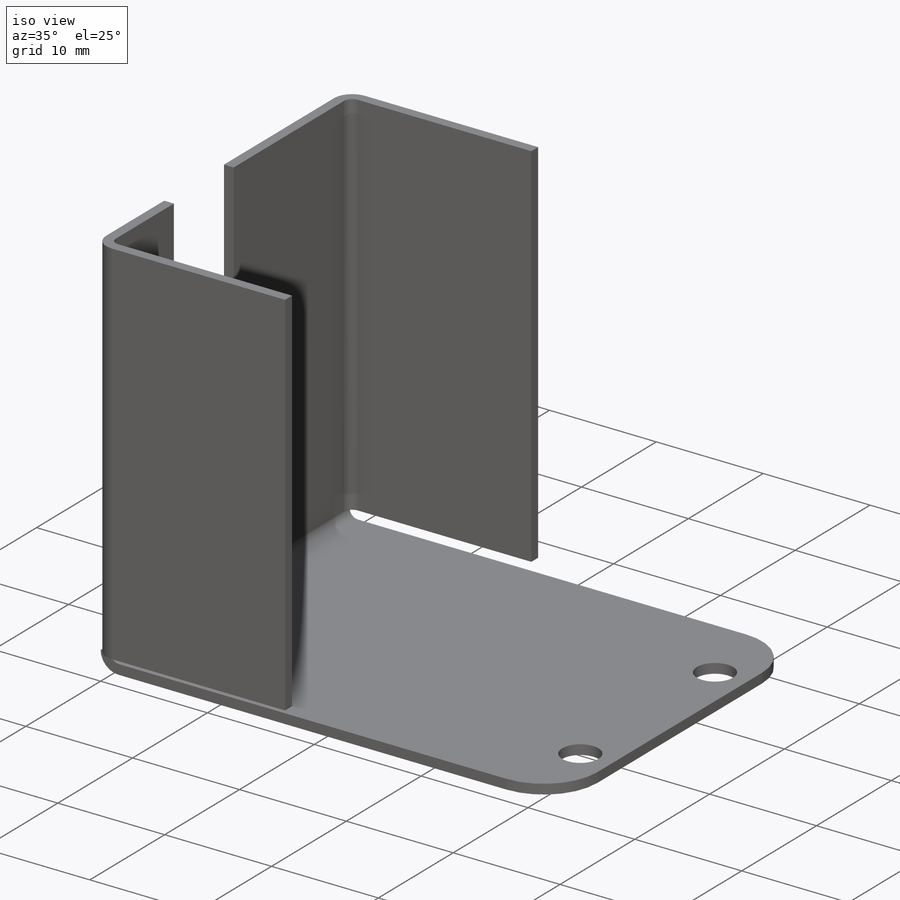
[diagram: iso view]
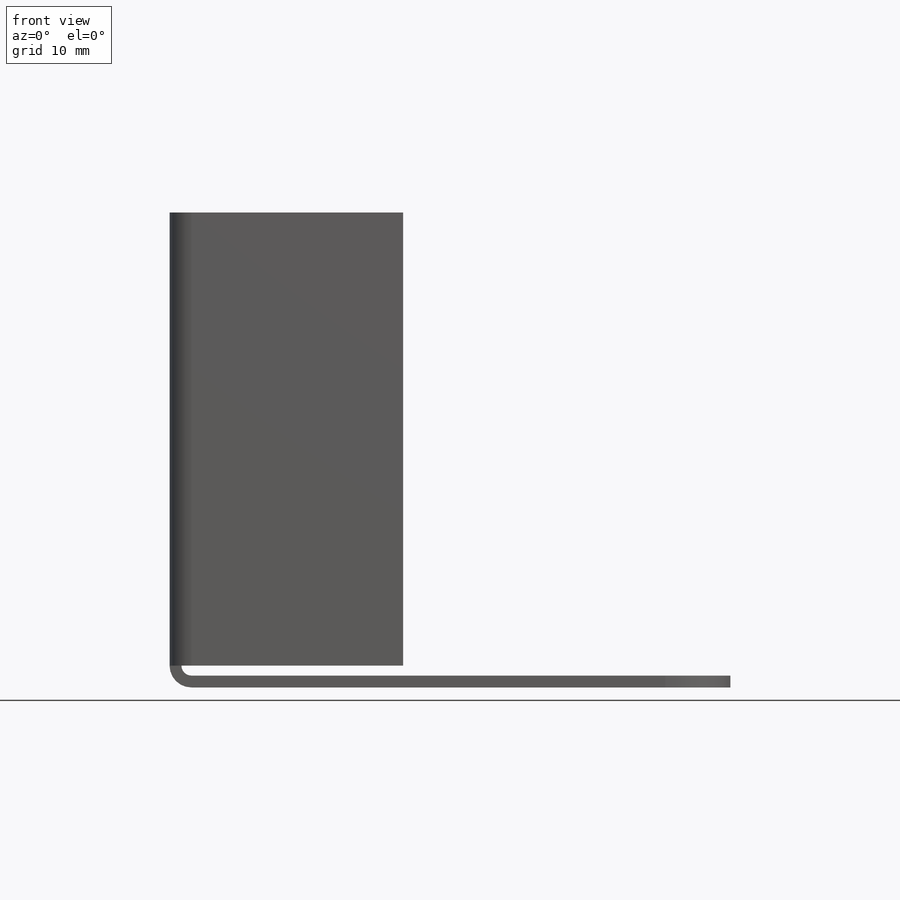
[diagram: front view]
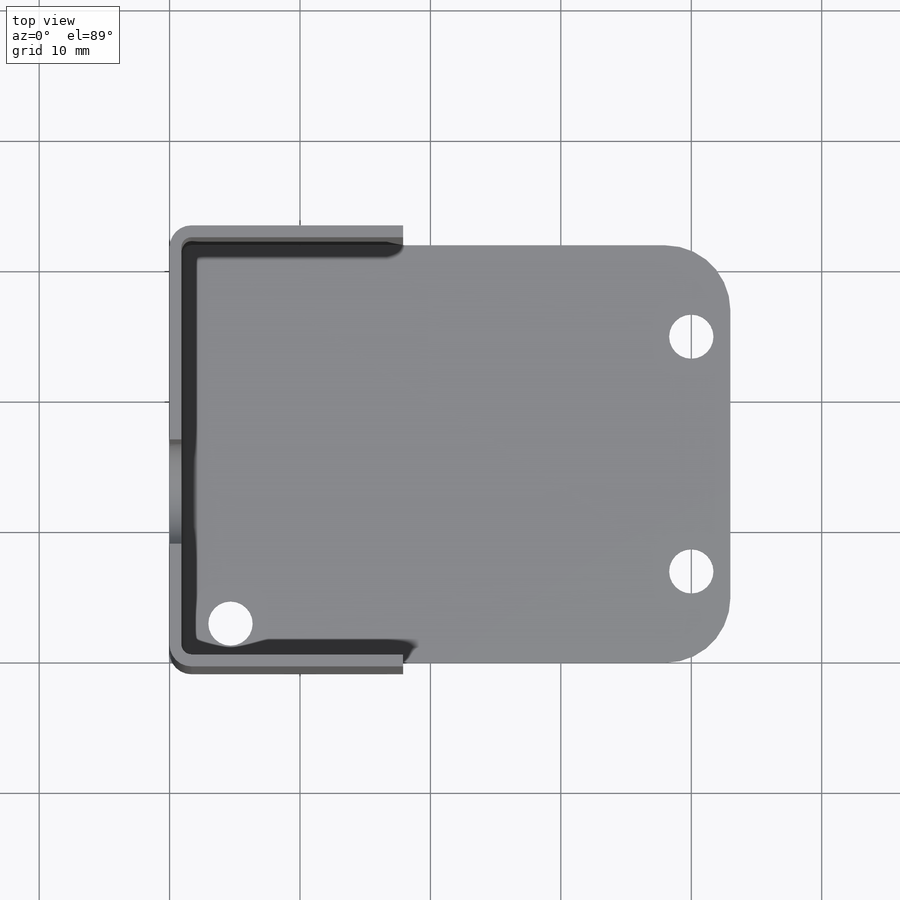
[diagram: top view]
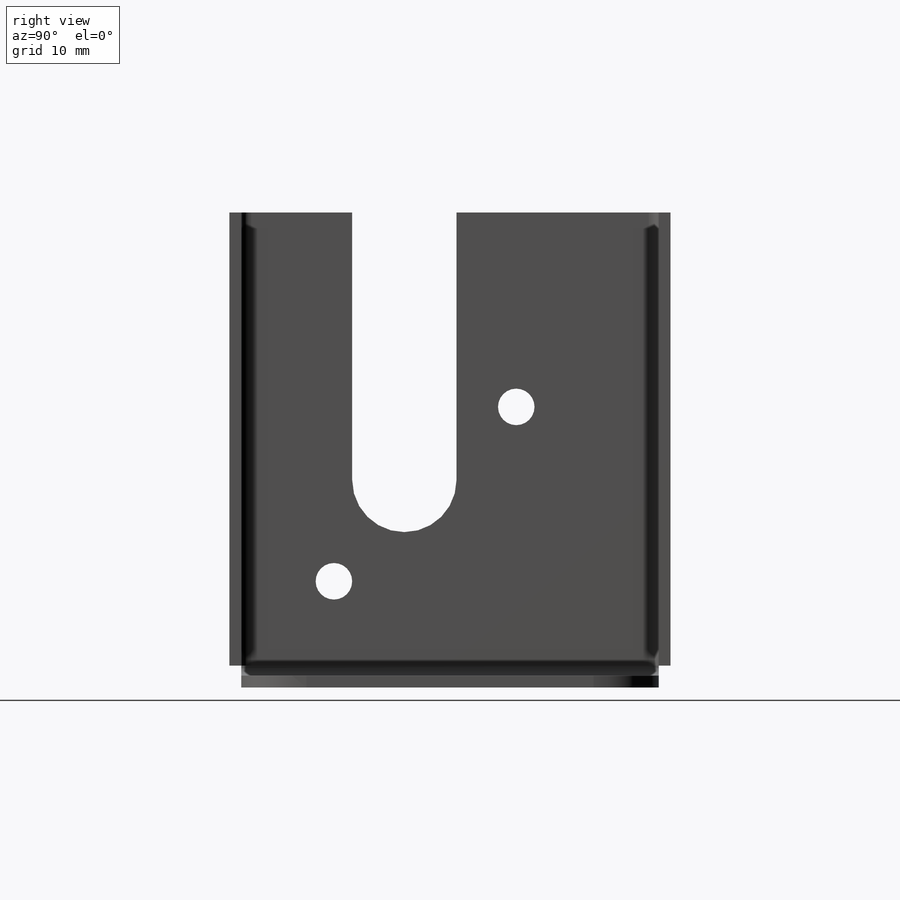
[diagram: right view]
SOLIDWORKS PART (.sldprt)
format: sldprt  version: not decoded by parser v0  size: 569,344 bytes
history: native  units: mm
features: sketch x32, sheet_metal_op x12, cut_extrude x5, material x1, plane x1, mirror x1, hole x1, fillet x1 + 9 further entries (+12 scaffold rows collapsed; 9 parser-record rows omitted)
feature tree (84):
  scaffold x12  (default folders/planes/origin — collapsed)
  material  "6061 Alloy"
  sketch  "Sketch1"  dims[c1.D1=~50.309408mm c1.D2=~37.203596mm c2.D1=43.0mm c2.D2=32.0mm c3.D1=0.762mm c3.D2=0.389 c3.D3=1.1938mm c3.D6=500.0mm]
  sheet_metal_op  "Base-Flange1"
  sketch  "Sketch8"  dims[c1.D1=0.762mm c1.D4=90.0deg c1.D5=1.0 c1.D8=0.38mm c1.D9=0.38mm c2.D1=0.762mm c2.D2=500.0mm c2.D3=0.0mm c2.D6=10.0mm c2.D7=35.5mm]
  sketch  "Sketch9"  dims[c1.D1=~8.061882mm c1.D2=2.8mm c1.D3=8.0mm c1.D6=2.8mm c2.D3=2.8mm c2.D1=20.42mm c2.D4=13.25mm c2.D5=17.57mm c2.D6=~8.194442mm c3.D5=12.0mm c3.D1=10.7mm c3.D3=~28.054004mm c3.D7=22.17mm c3.D8=10.21mm c3.D2=9.0mm c4.D1=5.4mm c4.D3=9.0mm c4.D2=9.0mm c5.D3=~13.145662mm c5.D2=15.0mm c6.D3=13.25mm c6.D4=12.5mm c6.D5=5.4mm c7.D3=5.4mm c7.Edge-Flange2=0.0]
  sketch  "Sketch12"
  sheet_metal_op  "EdgeBend2"
  plane  "Plane3"
  cut_extrude  "Motor Holes"  [1 undecoded]
  sketch  "Sketch17"  dims[c1.D1=0.76mm c1.D2=20.738mm c2.D1=1.0mm]
  sketch  "Sketch26"  dims[D1=15.0mm]
  mirror  "Mirror4"
  sheet_metal_op  "MirrorBend2"
  hole  "M3 Clearance Hole3"  Diameter=3.4mm Depth=12mm
  sketch  "Sketch28"  dims[D1=3.0mm D2=7.0mm D3=3.0mm D4=3.0mm D5=3.0mm D6=7.0mm]
  sketch  "Sketch27"  dims[hole-wizard template sketch: 50 standard entries collapsed; hole parameters above]
  sketch  "Sketch31"
  cut_extrude  "Cut-Extrude3"  Depth=10mm
  fillet  "Fillet2"  Radius=5mm
  sketch  "Sketch34"  dims[D1=5.4mm D2=7.77mm]
  cut_extrude  "Cut-Extrude4"  Depth=10mm
  sketch  "Sketch35"  dims[D3=~2.963672mm D1=8.58mm D2=5.6mm]
  cut_extrude  "Cut-Extrude5"  Depth=10mm
  sketch  "Bend-Lines1"
  sketch  "Bounding-Box1"
  sketch  "Sketch20"  dims[D1=8.0mm]
  cut_extrude  "Cut-Extrude1"  [1 undecoded]
  sheet_metal_op  "Sheet-Metal(1)"
  "Flat-Pattern(1)"
  sketch  "Bend-Lines2"
  sketch  "Bounding-Box2"
  parser-record x9  (decoder bookkeeping rows leaked as tree rows — omitted from the tree; the rows remain in map.json)
  sheet_metal_op  "Sheet-Metal(2)"
  "Flat-Pattern(1)"
  sketch  "Bend-Lines2"
  sketch  "Bounding-Box2"
  sheet_metal_op  "Sheet-Metal(3)"
  "Flat-Pattern(1)"
  sketch  "Bend-Lines2"
  sketch  "Bounding-Box2"
  sheet_metal_op  "Sheet-Metal(6)"
  "Flat-Pattern(1)"
  sketch  "Bend-Lines2"
  sketch  "Bounding-Box2"
  sheet_metal_op  "Sheet-Metal(19)"
  "Flat-Pattern(1)"
  sketch  "Bend-Lines2"
  sketch  "Bounding-Box2"
  sheet_metal_op  "Sheet-Metal(22)"
  "Flat-Pattern(1)"
  sketch  "Bend-Lines2"
  sketch  "Bounding-Box2"
  sheet_metal_op  "Sheet-Metal(24)"
  "Flat-Pattern(1)"
  sketch  "Bend-Lines2"
  sketch  "Bounding-Box2"
  sheet_metal_op  "Sheet-Metal(25)"
  "Flat-Pattern(1)"
  sketch  "Bend-Lines2"
  sketch  "Bounding-Box2"
  sheet_metal_op  "Sheet-Metal(26)"
  "Flat-Pattern(1)"
  sketch  "Bend-Lines2"
  sketch  "Bounding-Box2"
decode coverage: 15 of 52 modeling features carry decoded parameters; 9 rows unclassified (native names shown)
note: ~ marks probable driven/reference dimensions
note: 2 parameter values undecoded
note: suppression state not decoded; provenance and decode notes live in map.json
